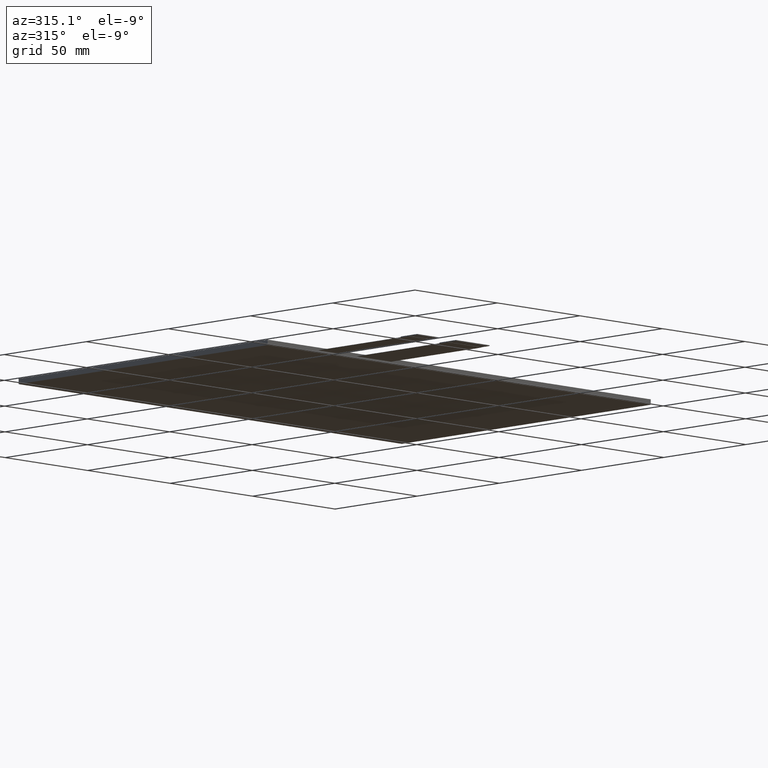
[diagram: clean part render]
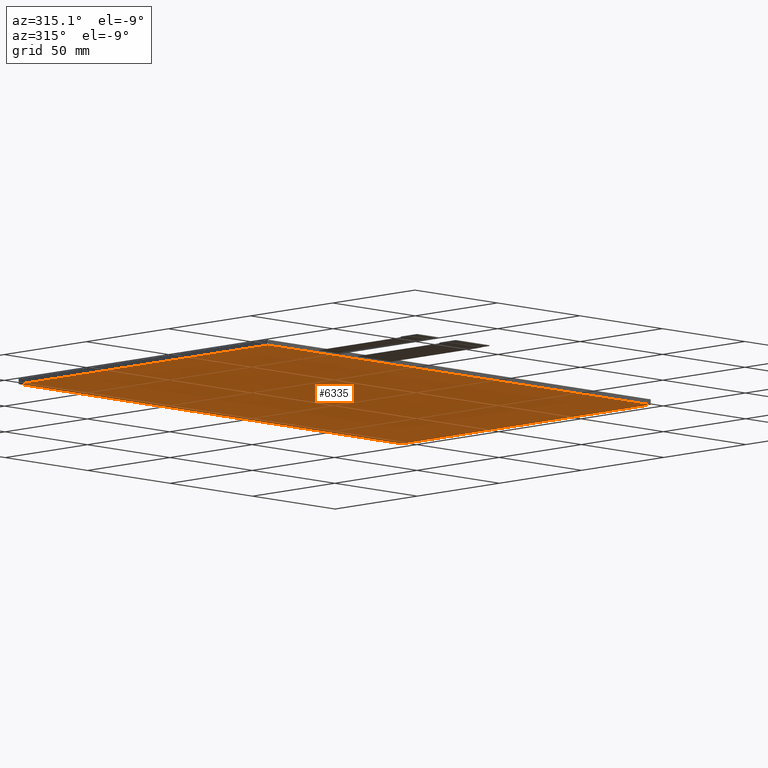
[diagram: same view with one face highlighted and labeled with its STEP entity id]
A machine part, auxiliary view. The second image highlights one B-rep face of the part: STEP entity #6335.
In plain terms, the highlighted planar face has unit normal (0, 0, -1).
Its self-contained STEP definition (entity closure, byte-faithful):
#397=PLANE('',#6665);
#699=FACE_OUTER_BOUND('',#1005,.T.);
#1005=EDGE_LOOP('',(#6026,#6027,#6028,#6029));
#1879=LINE('',#9937,#2759);
#1881=LINE('',#9941,#2761);
#1883=LINE('',#9945,#2763);
#1885=LINE('',#9948,#2765);
#2759=VECTOR('',#8151,10.);
#2761=VECTOR('',#8155,10.);
#2763=VECTOR('',#8159,10.);
#2765=VECTOR('',#8163,10.);
#3362=VERTEX_POINT('',#9934);
#3363=VERTEX_POINT('',#9936);
#3364=VERTEX_POINT('',#9940);
#3365=VERTEX_POINT('',#9944);
#4247=EDGE_CURVE('',#3363,#3362,#1879,.T.);
#4249=EDGE_CURVE('',#3364,#3363,#1881,.T.);
#4251=EDGE_CURVE('',#3365,#3364,#1883,.T.);
#4253=EDGE_CURVE('',#3362,#3365,#1885,.T.);
#6026=ORIENTED_EDGE('',*,*,#4253,.T.);
#6027=ORIENTED_EDGE('',*,*,#4251,.T.);
#6028=ORIENTED_EDGE('',*,*,#4249,.T.);
#6029=ORIENTED_EDGE('',*,*,#4247,.T.);
#6335=ADVANCED_FACE('',(#699),#397,.T.);
#6665=AXIS2_PLACEMENT_3D('',#9950,#8166,#8167);
#8151=DIRECTION('',(-2.34502553056139E-16,1.,0.));
#8155=DIRECTION('',(-1.,-1.14702335733981E-16,0.));
#8159=DIRECTION('',(1.17251276528069E-16,-1.,0.));
#8163=DIRECTION('',(1.,0.,0.));
#8166=DIRECTION('center_axis',(0.,0.,-1.));
#8167=DIRECTION('ref_axis',(-1.,0.,0.));
#9934=CARTESIAN_POINT('',(-117.28,74.19,-2.35));
#9936=CARTESIAN_POINT('',(-117.28,-77.31,-2.35));
#9937=CARTESIAN_POINT('',(-117.28,74.19,-2.35));
#9940=CARTESIAN_POINT('',(115.02,-77.31,-2.35));
#9941=CARTESIAN_POINT('',(-117.28,-77.31,-2.35));
#9944=CARTESIAN_POINT('',(115.02,74.19,-2.35));
#9945=CARTESIAN_POINT('',(115.02,-77.31,-2.35));
#9948=CARTESIAN_POINT('',(115.02,74.19,-2.35));
#9950=CARTESIAN_POINT('Origin',(-1.13000000000001,-1.56,-2.35));